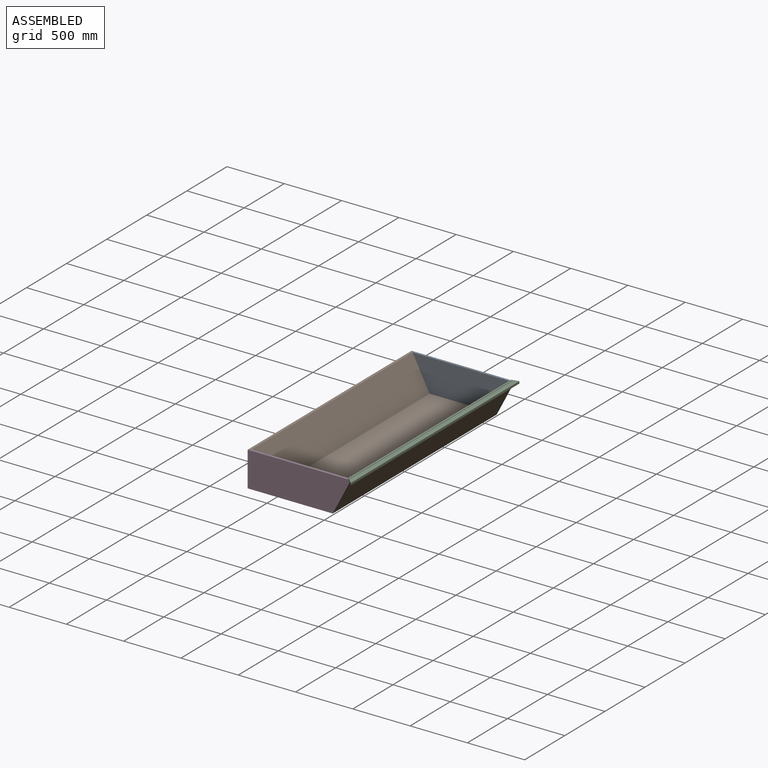
[diagram: assembled view]
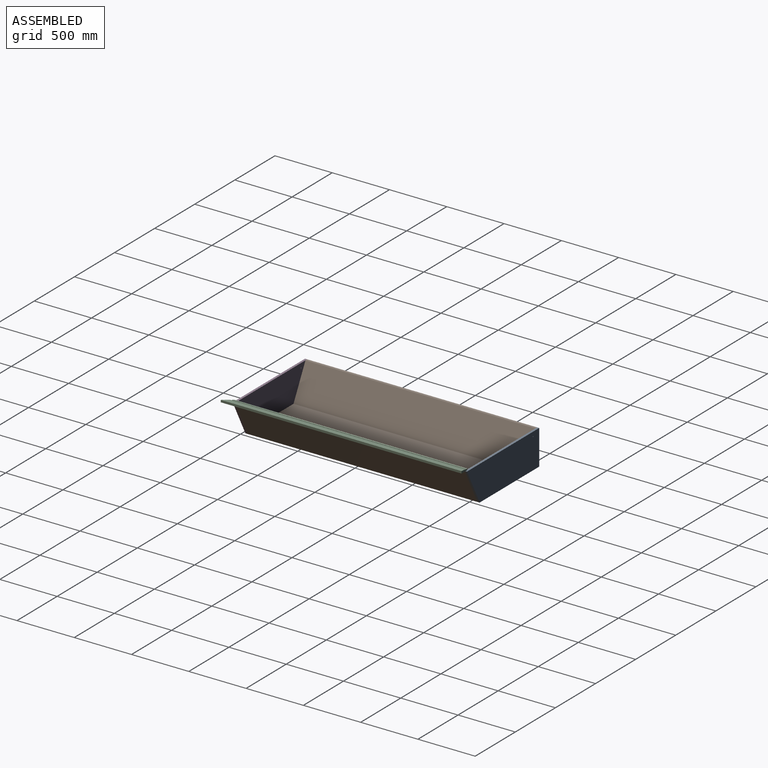
[diagram: assembled view, second angle]
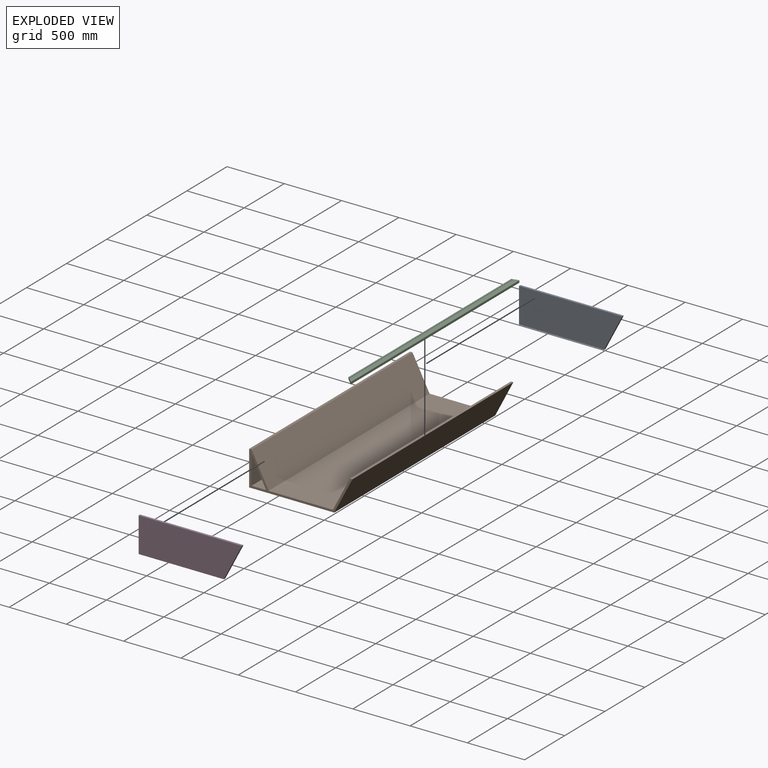
[diagram: exploded view]
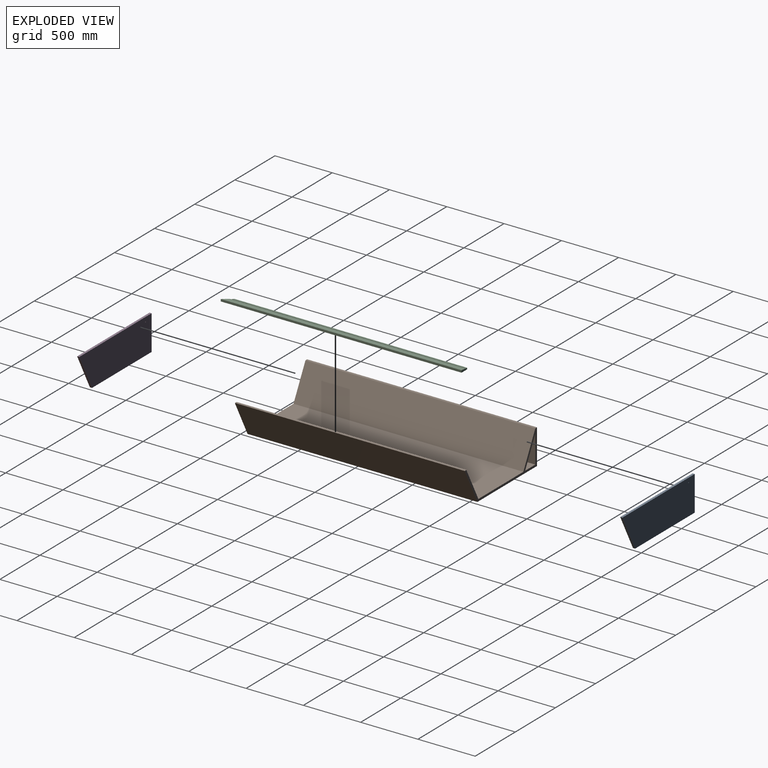
[diagram: exploded view, second angle]
ASSEMBLY  parts=4 mates=3
PART A: 7 faces, bbox 901.7x304.8x19.1 mm
  f0: plane 304.8x158.67mm, normal (-0.89,0.46,0), area 6546.1mm2, adj f1,f4,f5,f6
  f1: plane 901.7x19.05mm, normal (0,-1,0), area 17177.4mm2, adj f0,f2,f5,f6
  f2: plane 304.8x19.05mm, normal (1,0,0), area 5806.4mm2, adj f1,f4,f5,f6
  f3: cylinder r=3.17mm len=19.05mm, axis (0,0,-1), area 380mm2, adj f5,f6
  f4: plane 743.03x19.05mm, normal (0,1,0), area 14154.7mm2, adj f0,f2,f5,f6
  f5: plane 901.7x304.8mm, normal (0,0,1), area 250625.4mm2, adj f0,f1,f2,f3,f4
  f6: plane 901.7x304.8mm, normal (0,0,-1), area 250625.4mm2, adj f0,f1,f2,f3,f4
PART B: 13 faces, bbox 901.7x304.8x2006.6 mm
  f0: plane 2006.6x244.49mm, normal (0.89,0.46,0), area 553095mm2, adj f1,f10,f11,f12
  f1: plane 2006.6x127.28mm, normal (0,-1,0), area 255390.8mm2, adj f0,f10,f11,f12
  f2: plane 2006.6x285.75mm, normal (0.89,-0.46,0), area 646425mm2, adj f3,f9,f11,f12
  f3: plane 2006.6x561.24mm, normal (0,-1,0), area 1126189.6mm2, adj f2,f4,f11,f12
  f4: plane 2006.6x285.75mm, normal (-0.89,-0.46,0), area 646425mm2, adj f3,f5,f11,f12
  f5: plane 2006.6x21.48mm, normal (0,-1,0), area 43095mm2, adj f4,f6,f11,f12
  f6: plane 2006.6x304.8mm, normal (1,0,0), area 611611.7mm2, adj f5,f7,f11,f12
  f7: plane 2006.6x743.03mm, normal (0,1,0), area 1490966.3mm2, adj f6,f8,f11,f12
  f8: plane 2006.6x304.8mm, normal (-0.89,0.46,0), area 689520mm2, adj f7,f9,f11,f12
  f9: plane 2006.6x21.48mm, normal (0,-1,0), area 43095mm2, adj f2,f8,f11,f12
  f10: plane 2006.6x244.49mm, normal (-1,0,0), area 490601.2mm2, adj f0,f1,f11,f12
  f11: plane 901.7x304.8mm, normal (0,0,1), area 32217mm2, adj f0,f1,f2,f3,f4,f5,f6,f7
  f12: plane 901.7x304.8mm, normal (0,0,-1), area 32217mm2, adj f0,f1,f2,f3,f4,f5,f6,f7
PART C: 10 faces, bbox 69.9x2101.9x19.1 mm
  f0: plane 2101.85x19.05mm, normal (1,0,0), area 40040.2mm2, adj f1,f7,f8,f9
  f1: plane 2101.85x12.7mm, normal (0,0,1), area 26612.8mm2, adj f0,f2,f8,f9
  f2: plane 2089.15x3.18mm, normal (-1,0,0), area 6633.1mm2, adj f1,f3,f8,f9
  f3: extruded ~2089.15x44.45mm, area 95266.6mm2, adj f2,f4,f8,f9
  f4: plane 2044.7x3.18mm, normal (1,0,0), area 6491.9mm2, adj f3,f5,f8,f9
  f5: plane 2044.7x12.7mm, normal (0,0,1), area 25887mm2, adj f4,f6,f8,f9
  f6: plane 2032x12.7mm, normal (-1,0,0), area 25806.4mm2, adj f5,f7,f8,f9
  f7: plane 2101.85x69.85mm, normal (0,0,-1), area 144374.7mm2, adj f0,f6,f8,f9
  f8: plane 69.85x19.05mm, normal (0,1,0), area 1089.3mm2, adj f0,f1,f2,f3,f4,f5,f6,f7
  f9: plane 69.85x69.85mm, normal (-0.71,-0.71,0), area 1540.6mm2, adj f0,f1,f2,f3,f4,f5,f6,f7
PART D: same geometry as A
PLACE A rot(axis=(0,-0.71,0.71),180deg) t=(237.01,2115.13,-6080.04)mm
PLACE B rot(axis=(0,-0.71,0.71),180deg) t=(237.01,89.48,-6080.04)mm
PLACE C t=(-17.02,95.83,-127.57)mm
PLACE D rot(axis=(0,0.71,-0.71),180deg) t=(237.01,89.48,-6080.04)mm
MATE fastened A.f5 <-> B.f12  axis (0,-1,0) through (157.68,89.48,-6232.44)mm
MATE fastened B.f9 <-> C.f7  axis (0,0,1) through (666.38,-913.82,-5927.64)mm
MATE fastened B.f11 <-> D.f6  axis (0,-1,0) through (157.68,-1917.12,-6232.44)mm
